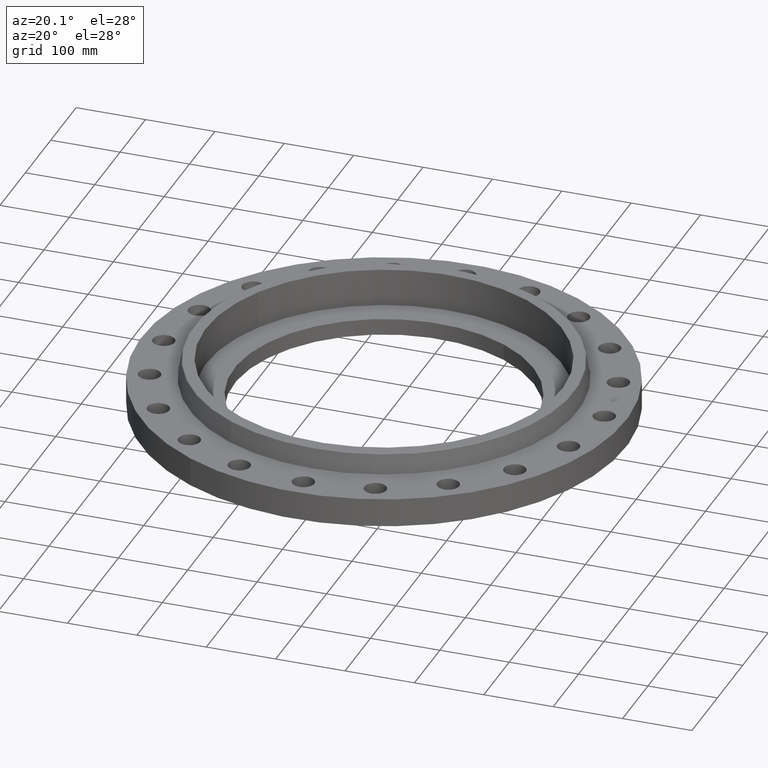
[diagram: clean part render]
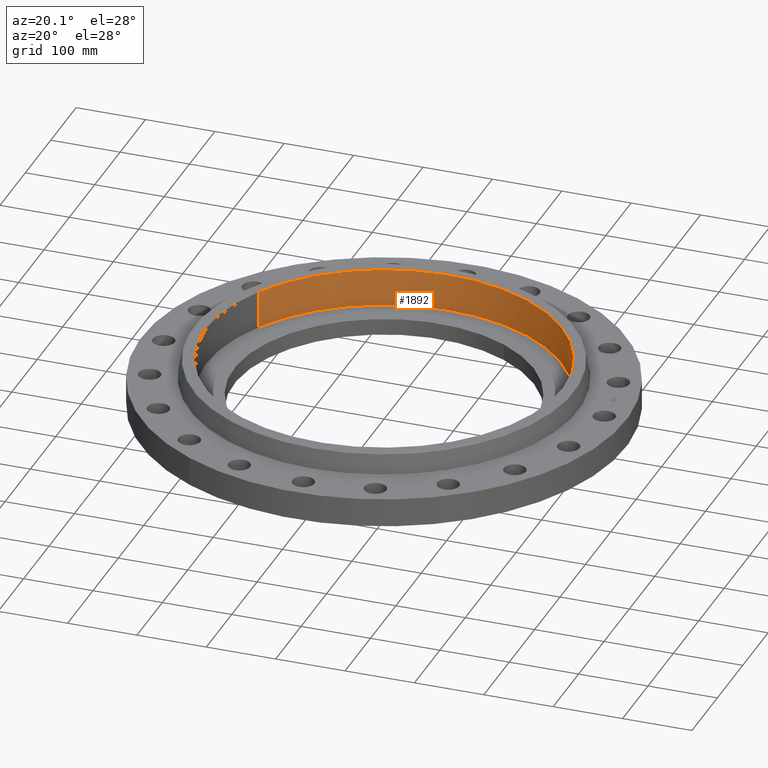
[diagram: same view with one face highlighted and labeled with its STEP entity id]
A machine part, auxiliary view. The second image highlights one B-rep face of the part: STEP entity #1892.
In plain terms, the highlighted cylindrical surface (partial cylindrical patch) has radius 256.54 mm, axis along (0, 0, -1).
Its self-contained STEP definition (entity closure, byte-faithful):
#42=AXIS2_PLACEMENT_3D('Circle Axis2P3D',#40,#41,$) ;
#1825=AXIS2_PLACEMENT_3D('Circle Axis2P3D',#1823,#1824,$) ;
#1874=AXIS2_PLACEMENT_3D('Cylinder Axis2P3D',#1871,#1872,#1873) ;
#40=CARTESIAN_POINT('Axis2P3D Location',(1.04902962957E-016,-6.99353086378E-017,0.680000000003)) ;
#44=CARTESIAN_POINT('Vertex',(-8.86358387513,4.84219793992,0.680000000003)) ;
#46=CARTESIAN_POINT('Vertex',(8.86358387513,-4.84219793992,0.680000000003)) ;
#1823=CARTESIAN_POINT('Axis2P3D Location',(-5.59482469102E-016,2.23792987641E-015,2.81000000001)) ;
#1827=CARTESIAN_POINT('Vertex',(-8.86358387513,4.84219793992,2.81000000001)) ;
#1829=CARTESIAN_POINT('Vertex',(8.86358387513,-4.84219793992,2.81000000001)) ;
#1871=CARTESIAN_POINT('Axis2P3D Location',(1.04902962957E-016,-6.99353086378E-017,2.80606299214)) ;
#1876=CARTESIAN_POINT('Line Origine',(-8.86358387513,4.84219793992,1.74500000001)) ;
#1881=CARTESIAN_POINT('Line Origine',(8.86358387513,-4.84219793992,1.74500000001)) ;
#41=DIRECTION('Axis2P3D Direction',(0.,0.,-0.0393700787402)) ;
#1824=DIRECTION('Axis2P3D Direction',(0.,0.,-0.0393700787402)) ;
#1872=DIRECTION('Axis2P3D Direction',(0.,0.,-0.0393700787402)) ;
#1873=DIRECTION('Axis2P3D XDirection',(0.0345504945626,-0.0188750212049,0.)) ;
#1877=DIRECTION('Vector Direction',(0.,0.,-0.0393700787402)) ;
#1882=DIRECTION('Vector Direction',(0.,0.,-0.0393700787402)) ;
#1878=VECTOR('Line Direction',#1877,0.0393700787402) ;
#1883=VECTOR('Line Direction',#1882,0.0393700787402) ;
#1887=ORIENTED_EDGE('',*,*,#1831,.F.) ;
#1888=ORIENTED_EDGE('',*,*,#1880,.F.) ;
#1889=ORIENTED_EDGE('',*,*,#48,.T.) ;
#1890=ORIENTED_EDGE('',*,*,#1885,.T.) ;
#1892=ADVANCED_FACE('PartBody',(#1891),#1875,.F.) ;
#43=CIRCLE('generated circle',#42,10.1) ;
#1826=CIRCLE('generated circle',#1825,10.1) ;
#1875=CYLINDRICAL_SURFACE('generated cylinder',#1874,10.1) ;
#48=EDGE_CURVE('',#45,#47,#43,.T.) ;
#1831=EDGE_CURVE('',#1828,#1830,#1826,.T.) ;
#1880=EDGE_CURVE('',#45,#1828,#1879,.F.) ;
#1885=EDGE_CURVE('',#47,#1830,#1884,.F.) ;
#1886=EDGE_LOOP('',(#1887,#1888,#1889,#1890)) ;
#1891=FACE_OUTER_BOUND('',#1886,.T.) ;
#1879=LINE('Line',#1876,#1878) ;
#1884=LINE('Line',#1881,#1883) ;
#45=VERTEX_POINT('',#44) ;
#47=VERTEX_POINT('',#46) ;
#1828=VERTEX_POINT('',#1827) ;
#1830=VERTEX_POINT('',#1829) ;